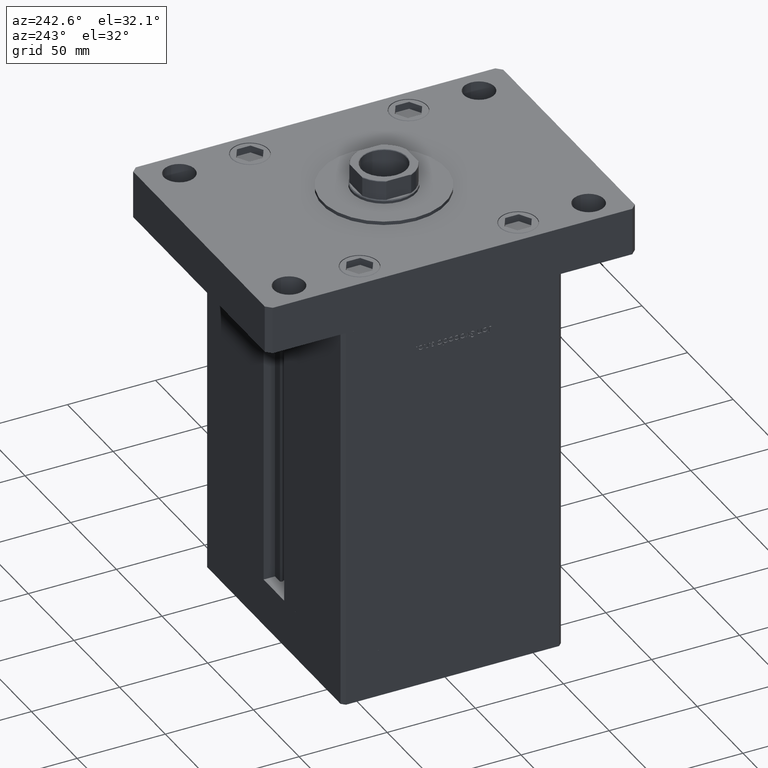
[diagram: clean part render]
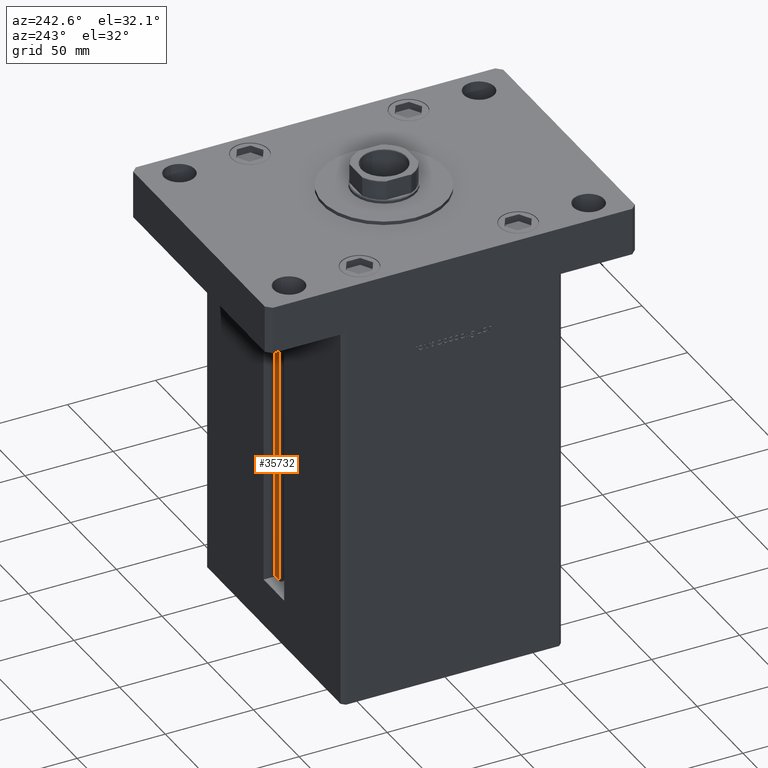
[diagram: same view with one face highlighted and labeled with its STEP entity id]
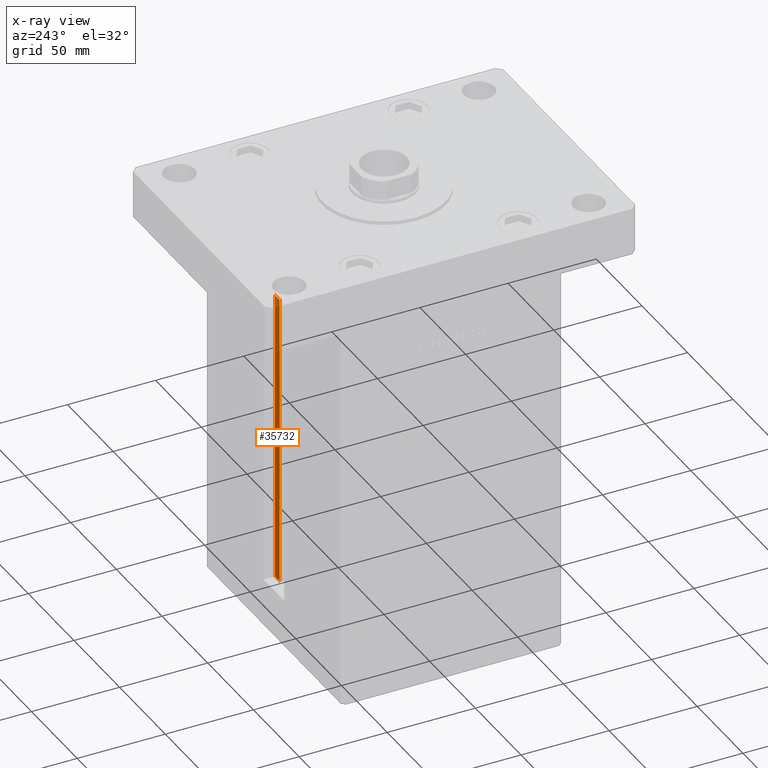
[diagram: x-ray of the same camera — body ghosted, the highlighted face saturated]
A machine part, auxiliary view. The second image highlights one B-rep face of the part: STEP entity #35732.
The next image is the same camera in x-ray: the body ghosted, the highlighted face saturated — about 19% of this face is hidden behind the body in this view.
In plain terms, the highlighted planar face has unit normal (0, -1, 0).
Its self-contained STEP definition (entity closure, byte-faithful):
#3434 = DIRECTION ( 'NONE',  ( -0.000000000000000000, -0.000000000000000000, 1.000000000000000000 ) ) ;
#5273 = EDGE_CURVE ( 'NONE', #23371, #50220, #51172, .T. ) ;
#6983 = VECTOR ( 'NONE', #47368, 1000.000000000000000 ) ;
#8223 = CARTESIAN_POINT ( 'NONE',  ( 11.25000000000000178, 55.99999999999999289, 166.9999999999999432 ) ) ;
#9791 = CARTESIAN_POINT ( 'NONE',  ( 6.183333333334001480, 55.99999999999999289, 0.000000000000000000 ) ) ;
#14334 = CARTESIAN_POINT ( 'NONE',  ( 11.25000000000000178, 55.99999999999999289, 0.000000000000000000 ) ) ;
#15912 = VERTEX_POINT ( 'NONE', #52839 ) ;
#19443 = LINE ( 'NONE', #40569, #31782 ) ;
#19925 = EDGE_CURVE ( 'NONE', #15912, #39343, #42847, .T. ) ;
#20095 = ORIENTED_EDGE ( 'NONE', *, *, #32096, .T. ) ;
#23069 = DIRECTION ( 'NONE',  ( 1.000000000000000000, 0.000000000000000000, 0.000000000000000000 ) ) ;
#23371 = VERTEX_POINT ( 'NONE', #8223 ) ;
#24522 = EDGE_CURVE ( 'NONE', #39343, #23371, #40687, .T. ) ;
#26515 = CARTESIAN_POINT ( 'NONE',  ( 0.000000000000000000, 55.99999999999999289, 167.0000000000000000 ) ) ;
#27329 = VECTOR ( 'NONE', #53153, 1000.000000000000000 ) ;
#30182 = FACE_OUTER_BOUND ( 'NONE', #33166, .T. ) ;
#31782 = VECTOR ( 'NONE', #3434, 1000.000000000000000 ) ;
#32096 = EDGE_CURVE ( 'NONE', #15912, #50220, #19443, .T. ) ;
#33166 = EDGE_LOOP ( 'NONE', ( #46466, #40184, #20095, #46932 ) ) ;
#34263 = CARTESIAN_POINT ( 'NONE',  ( 6.183333333334001480, 55.99999999999999289, 0.000000000000000000 ) ) ;
#34782 = PLANE ( 'NONE',  #44236 ) ;
#35732 = ADVANCED_FACE ( 'NONE', ( #30182 ), #34782, .F. ) ;
#39343 = VERTEX_POINT ( 'NONE', #14334 ) ;
#40184 = ORIENTED_EDGE ( 'NONE', *, *, #19925, .F. ) ;
#40569 = CARTESIAN_POINT ( 'NONE',  ( 6.183333333334001480, 55.99999999999999289, 0.000000000000000000 ) ) ;
#40687 = LINE ( 'NONE', #45284, #27329 ) ;
#41914 = VECTOR ( 'NONE', #23069, 1000.000000000000000 ) ;
#42625 = DIRECTION ( 'NONE',  ( 0.000000000000000000, -0.000000000000000000, -1.000000000000000000 ) ) ;
#42847 = LINE ( 'NONE', #9791, #41914 ) ;
#43420 = DIRECTION ( 'NONE',  ( 0.000000000000000000, -1.000000000000000000, 0.000000000000000000 ) ) ;
#44236 = AXIS2_PLACEMENT_3D ( 'NONE', #34263, #43420, #42625 ) ;
#45284 = CARTESIAN_POINT ( 'NONE',  ( 11.25000000000000178, 55.99999999999999289, 0.000000000000000000 ) ) ;
#46466 = ORIENTED_EDGE ( 'NONE', *, *, #24522, .F. ) ;
#46819 = CARTESIAN_POINT ( 'NONE',  ( 6.183333333334001480, 55.99999999999999289, 166.9999999999999432 ) ) ;
#46932 = ORIENTED_EDGE ( 'NONE', *, *, #5273, .F. ) ;
#47368 = DIRECTION ( 'NONE',  ( -1.000000000000000000, 0.000000000000000000, 0.000000000000000000 ) ) ;
#50220 = VERTEX_POINT ( 'NONE', #46819 ) ;
#51172 = LINE ( 'NONE', #26515, #6983 ) ;
#52839 = CARTESIAN_POINT ( 'NONE',  ( 6.183333333334001480, 55.99999999999999289, 0.000000000000000000 ) ) ;
#53153 = DIRECTION ( 'NONE',  ( -0.000000000000000000, -0.000000000000000000, 1.000000000000000000 ) ) ;